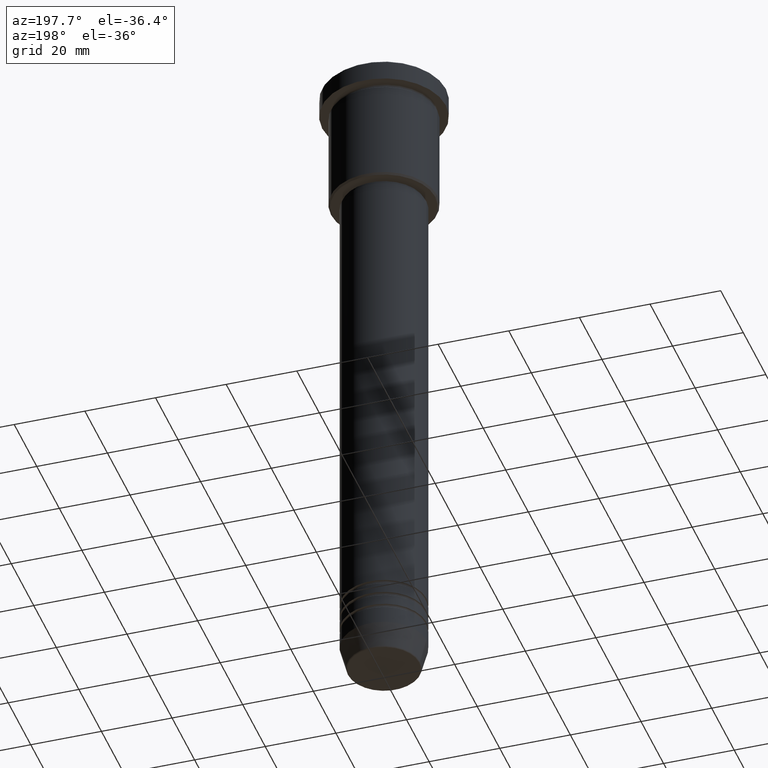
[diagram: clean part render]
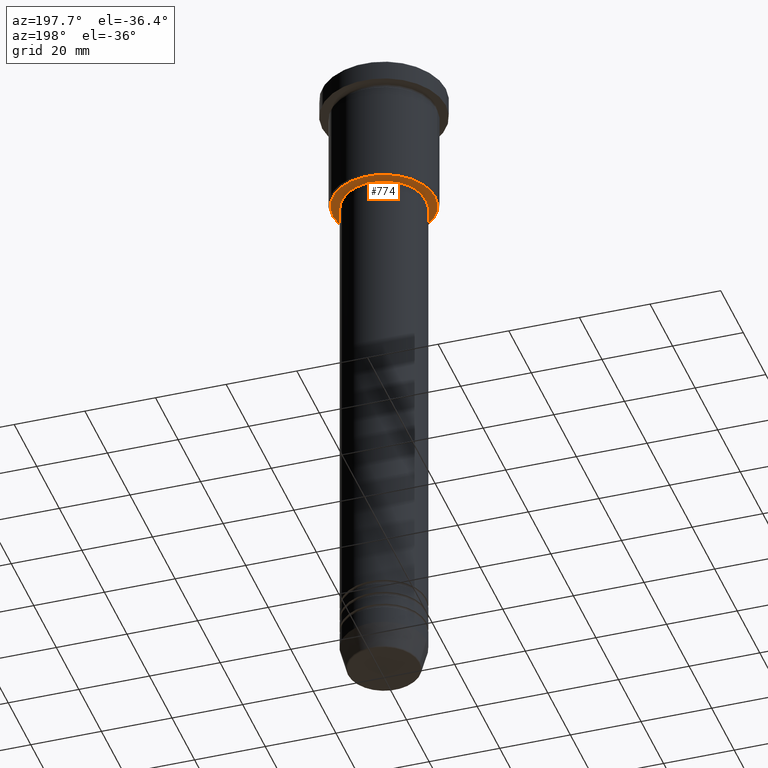
[diagram: same view with one face highlighted and labeled with its STEP entity id]
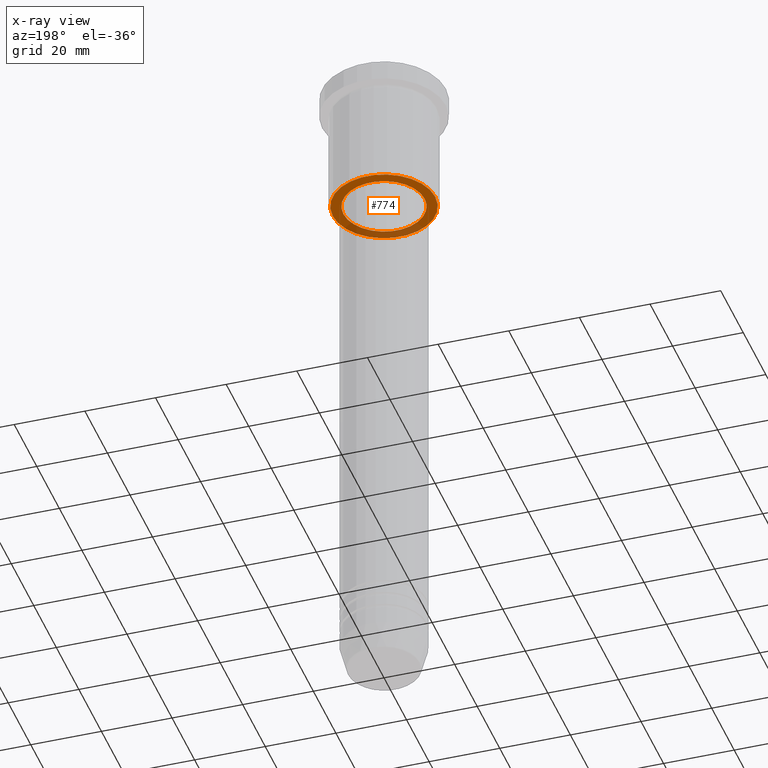
[diagram: x-ray of the same camera — body ghosted, the highlighted face saturated]
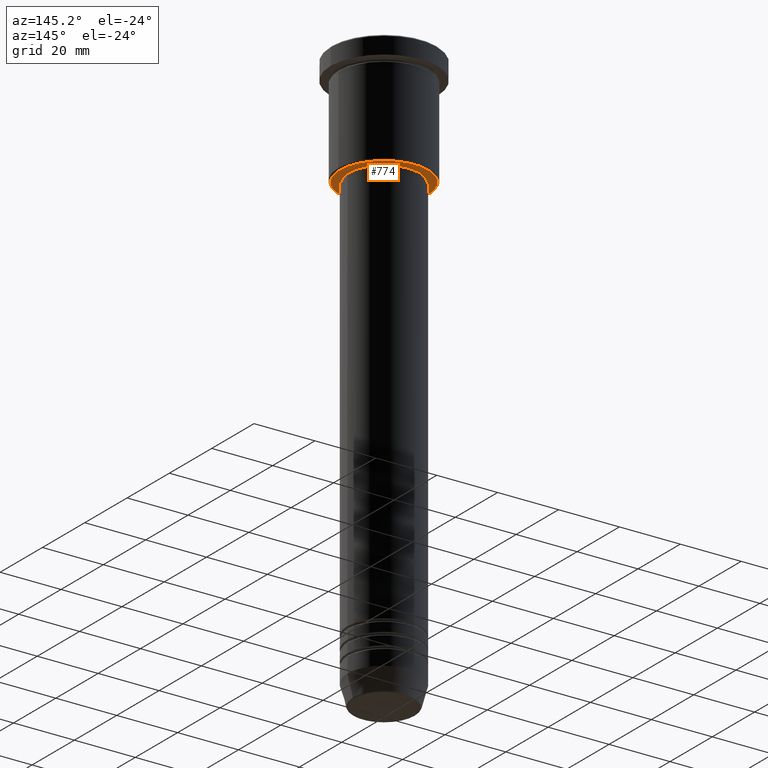
[diagram: same view with one face highlighted and labeled with its STEP entity id]
A machine part, auxiliary view. The second image highlights one B-rep face of the part: STEP entity #774.
The next image is the same camera in x-ray: the body ghosted, the highlighted face saturated — about 27% of this face is hidden behind the body in this view.
A second angle (auxiliary view) of the same face is appended — the face is thin or edge-on in the first view.
In plain terms, the highlighted planar face has unit normal (0, 0, -1).
Its self-contained STEP definition (entity closure, byte-faithful):
#32 = CIRCLE ( 'NONE', #386, 14.50000000000001066 ) ;
#45 = DIRECTION ( 'NONE',  ( -1.000000000000000000, 0.000000000000000000, 0.000000000000000000 ) ) ;
#117 = CIRCLE ( 'NONE', #276, 11.50000000000000000 ) ;
#119 = AXIS2_PLACEMENT_3D ( 'NONE', #1132, #1035, #935 ) ;
#124 = CARTESIAN_POINT ( 'NONE',  ( -14.50000000000001066, 1.806354028742346591E-15, -36.00000000000001421 ) ) ;
#145 = DIRECTION ( 'NONE',  ( 0.000000000000000000, 0.000000000000000000, -1.000000000000000000 ) ) ;
#160 = VERTEX_POINT ( 'NONE', #124 ) ;
#188 = EDGE_CURVE ( 'NONE', #160, #838, #742, .T. ) ;
#207 = CARTESIAN_POINT ( 'NONE',  ( 11.50000000000000000, 0.000000000000000000, -36.00000000000001421 ) ) ;
#258 = EDGE_LOOP ( 'NONE', ( #675, #468 ) ) ;
#276 = AXIS2_PLACEMENT_3D ( 'NONE', #562, #1113, #835 ) ;
#280 = CARTESIAN_POINT ( 'NONE',  ( 0.000000000000000000, 0.000000000000000000, -36.00000000000001421 ) ) ;
#339 = ORIENTED_EDGE ( 'NONE', *, *, #188, .T. ) ;
#346 = EDGE_CURVE ( 'NONE', #838, #160, #32, .T. ) ;
#386 = AXIS2_PLACEMENT_3D ( 'NONE', #280, #459, #1103 ) ;
#456 = FACE_BOUND ( 'NONE', #258, .T. ) ;
#459 = DIRECTION ( 'NONE',  ( 0.000000000000000000, 0.000000000000000000, -1.000000000000000000 ) ) ;
#466 = VERTEX_POINT ( 'NONE', #207 ) ;
#468 = ORIENTED_EDGE ( 'NONE', *, *, #1087, .T. ) ;
#526 = DIRECTION ( 'NONE',  ( -1.000000000000000000, 0.000000000000000000, -0.000000000000000000 ) ) ;
#562 = CARTESIAN_POINT ( 'NONE',  ( 0.000000000000000000, 0.000000000000000000, -36.00000000000001421 ) ) ;
#630 = AXIS2_PLACEMENT_3D ( 'NONE', #954, #145, #45 ) ;
#675 = ORIENTED_EDGE ( 'NONE', *, *, #936, .T. ) ;
#703 = PLANE ( 'NONE',  #972 ) ;
#712 = CIRCLE ( 'NONE', #119, 11.50000000000000000 ) ;
#713 = VERTEX_POINT ( 'NONE', #909 ) ;
#742 = CIRCLE ( 'NONE', #630, 14.50000000000001066 ) ;
#774 = ADVANCED_FACE ( 'NONE', ( #788, #456 ), #703, .T. ) ;
#783 = ORIENTED_EDGE ( 'NONE', *, *, #346, .T. ) ;
#788 = FACE_OUTER_BOUND ( 'NONE', #1076, .T. ) ;
#835 = DIRECTION ( 'NONE',  ( 1.000000000000000000, 0.000000000000000000, 0.000000000000000000 ) ) ;
#838 = VERTEX_POINT ( 'NONE', #1074 ) ;
#909 = CARTESIAN_POINT ( 'NONE',  ( -11.50000000000000000, 1.408343819019456176E-15, -36.00000000000001421 ) ) ;
#935 = DIRECTION ( 'NONE',  ( 1.000000000000000000, 0.000000000000000000, 0.000000000000000000 ) ) ;
#936 = EDGE_CURVE ( 'NONE', #466, #713, #117, .T. ) ;
#954 = CARTESIAN_POINT ( 'NONE',  ( 0.000000000000000000, 0.000000000000000000, -36.00000000000001421 ) ) ;
#972 = AXIS2_PLACEMENT_3D ( 'NONE', #1170, #1155, #526 ) ;
#1035 = DIRECTION ( 'NONE',  ( -0.000000000000000000, -0.000000000000000000, 1.000000000000000000 ) ) ;
#1074 = CARTESIAN_POINT ( 'NONE',  ( 14.50000000000001066, 0.000000000000000000, -36.00000000000001421 ) ) ;
#1076 = EDGE_LOOP ( 'NONE', ( #783, #339 ) ) ;
#1087 = EDGE_CURVE ( 'NONE', #713, #466, #712, .T. ) ;
#1103 = DIRECTION ( 'NONE',  ( -1.000000000000000000, 0.000000000000000000, 0.000000000000000000 ) ) ;
#1113 = DIRECTION ( 'NONE',  ( -0.000000000000000000, -0.000000000000000000, 1.000000000000000000 ) ) ;
#1132 = CARTESIAN_POINT ( 'NONE',  ( 0.000000000000000000, 0.000000000000000000, -36.00000000000001421 ) ) ;
#1155 = DIRECTION ( 'NONE',  ( 0.000000000000000000, 0.000000000000000000, -1.000000000000000000 ) ) ;
#1170 = CARTESIAN_POINT ( 'NONE',  ( 0.000000000000000000, 15.00000000000000000, -36.00000000000001421 ) ) ;